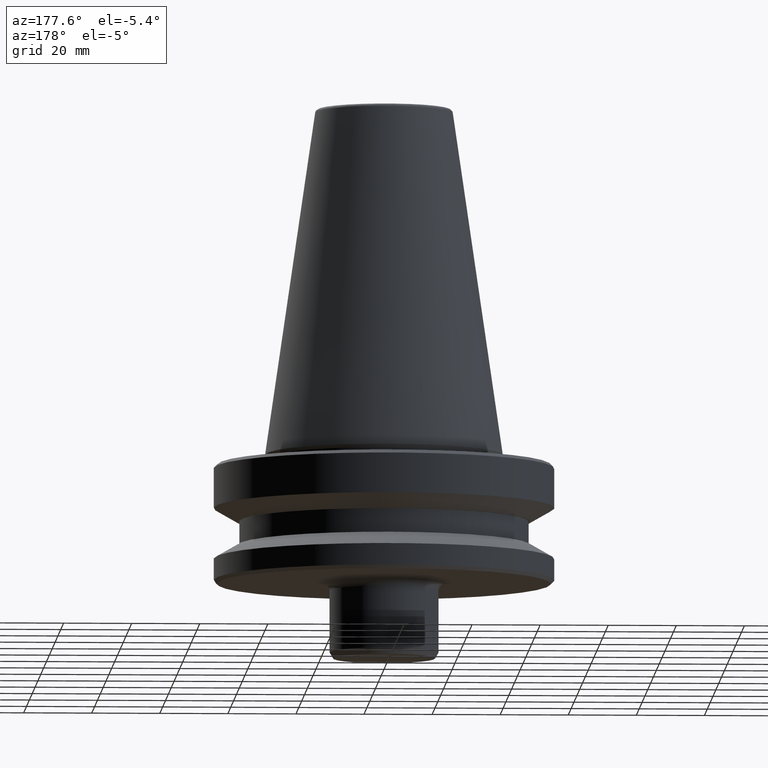
[diagram: clean part render]
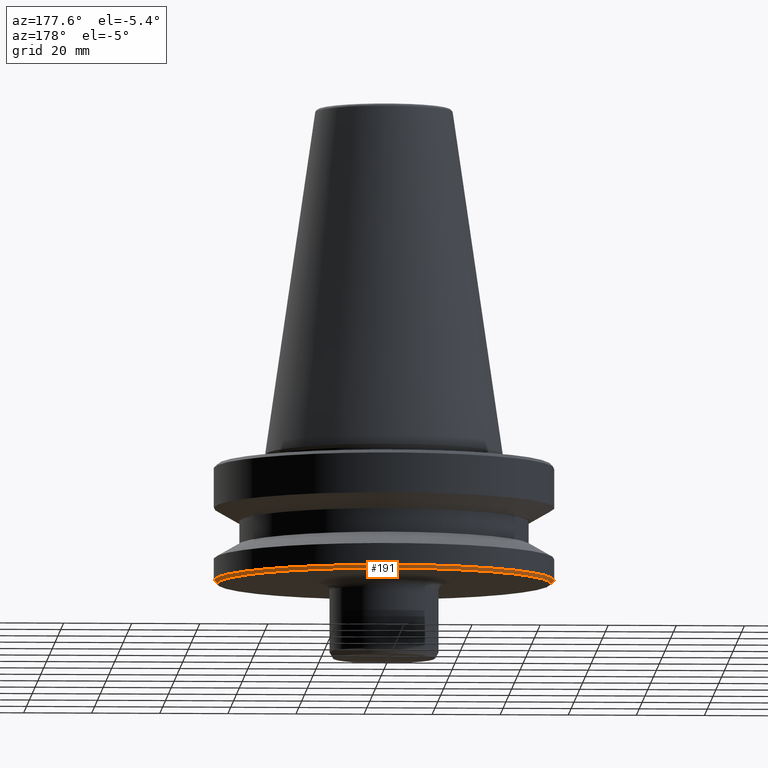
[diagram: same view with one face highlighted and labeled with its STEP entity id]
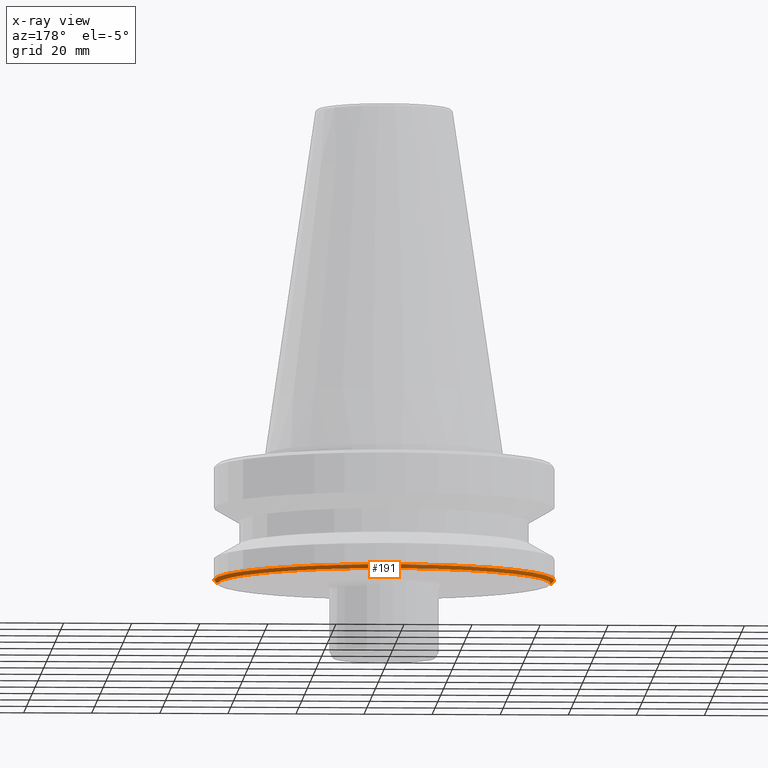
[diagram: x-ray of the same camera — body ghosted, the highlighted face saturated]
A machine part, auxiliary view. The second image highlights one B-rep face of the part: STEP entity #191.
The next image is the same camera in x-ray: the body ghosted, the highlighted face saturated — about 0% of this face is hidden behind the body in this view.
In plain terms, the highlighted conical surface has half-angle 45 deg.
Its self-contained STEP definition (entity closure, byte-faithful):
#13 = CARTESIAN_POINT ( 'NONE',  ( 48.99999999999970900, 0.0000000000000000000, -37.99999999994118100 ) ) ;
#43 = ORIENTED_EDGE ( 'NONE', *, *, #106, .T. ) ;
#77 = CARTESIAN_POINT ( 'NONE',  ( 0.0000000000000000000, 0.0000000000000000000, -37.99999999994118100 ) ) ;
#85 = EDGE_CURVE ( 'NONE', #669, #211, #711, .T. ) ;
#106 = EDGE_CURVE ( 'NONE', #831, #669, #915, .T. ) ;
#111 = CONICAL_SURFACE ( 'NONE', #921, 48.99999999999970900, 0.7853981633974482800 ) ;
#162 = FACE_OUTER_BOUND ( 'NONE', #436, .T. ) ;
#191 = ADVANCED_FACE ( 'NONE', ( #162 ), #111, .T. ) ;
#204 = EDGE_CURVE ( 'NONE', #956, #211, #523, .T. ) ;
#211 = VERTEX_POINT ( 'NONE', #390 ) ;
#216 = CARTESIAN_POINT ( 'NONE',  ( -48.99999999999970900, 6.062001655779369300E-015, -37.99999999994118100 ) ) ;
#239 = CARTESIAN_POINT ( 'NONE',  ( 0.0000000000000000000, 0.0000000000000000000, -37.99999999994118100 ) ) ;
#273 = DIRECTION ( 'NONE',  ( 1.000000000000000000, 0.0000000000000000000, 0.0000000000000000000 ) ) ;
#288 = ORIENTED_EDGE ( 'NONE', *, *, #460, .F. ) ;
#367 = DIRECTION ( 'NONE',  ( -0.0000000000000000000, -0.0000000000000000000, 1.000000000000000000 ) ) ;
#376 = ORIENTED_EDGE ( 'NONE', *, *, #85, .T. ) ;
#385 = DIRECTION ( 'NONE',  ( -0.7071067811865474600, 8.659560562354931600E-017, 0.7071067811865475700 ) ) ;
#390 = CARTESIAN_POINT ( 'NONE',  ( -49.99999999999982200, 6.123233995736744000E-015, -36.99999999994106800 ) ) ;
#436 = EDGE_LOOP ( 'NONE', ( #43, #376, #760, #288 ) ) ;
#460 = EDGE_CURVE ( 'NONE', #831, #956, #631, .T. ) ;
#498 = CARTESIAN_POINT ( 'NONE',  ( 49.99999999999982200, 0.0000000000000000000, -36.99999999994106800 ) ) ;
#514 = VECTOR ( 'NONE', #385, 1000.000000000000000 ) ;
#523 = CIRCLE ( 'NONE', #962, 49.99999999999982200 ) ;
#588 = VECTOR ( 'NONE', #689, 1000.000000000000000 ) ;
#619 = DIRECTION ( 'NONE',  ( -0.0000000000000000000, -0.0000000000000000000, 1.000000000000000000 ) ) ;
#631 = LINE ( 'NONE', #13, #588 ) ;
#669 = VERTEX_POINT ( 'NONE', #216 ) ;
#689 = DIRECTION ( 'NONE',  ( 0.7071067811865474600, 0.0000000000000000000, 0.7071067811865475700 ) ) ;
#711 = LINE ( 'NONE', #923, #514 ) ;
#760 = ORIENTED_EDGE ( 'NONE', *, *, #204, .F. ) ;
#767 = DIRECTION ( 'NONE',  ( -0.0000000000000000000, -0.0000000000000000000, 1.000000000000000000 ) ) ;
#831 = VERTEX_POINT ( 'NONE', #986 ) ;
#853 = CARTESIAN_POINT ( 'NONE',  ( 0.0000000000000000000, 0.0000000000000000000, -36.99999999994106800 ) ) ;
#878 = AXIS2_PLACEMENT_3D ( 'NONE', #77, #367, #944 ) ;
#915 = CIRCLE ( 'NONE', #878, 48.99999999999970900 ) ;
#921 = AXIS2_PLACEMENT_3D ( 'NONE', #239, #619, #273 ) ;
#923 = CARTESIAN_POINT ( 'NONE',  ( -48.99999999999970900, 6.000769315821995400E-015, -37.99999999994118100 ) ) ;
#944 = DIRECTION ( 'NONE',  ( 1.000000000000000000, 0.0000000000000000000, 0.0000000000000000000 ) ) ;
#956 = VERTEX_POINT ( 'NONE', #498 ) ;
#962 = AXIS2_PLACEMENT_3D ( 'NONE', #853, #767, #983 ) ;
#983 = DIRECTION ( 'NONE',  ( 1.000000000000000000, 0.0000000000000000000, 0.0000000000000000000 ) ) ;
#986 = CARTESIAN_POINT ( 'NONE',  ( 48.99999999999970900, 0.0000000000000000000, -37.99999999994118100 ) ) ;